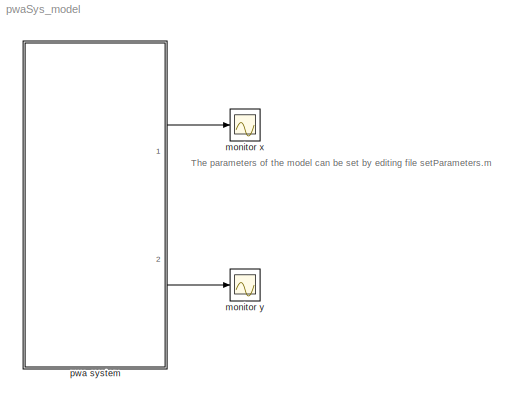
MODEL pwaSys_model
KIND model
CONFIG InitFcn = load simulink.mat\nsetParameters
CONFIG StartFcn = load simulink.mat\nsetParameters\nclear res_X res_U res_Y res_P res_D
CONFIG StopFcn = plotScope
BLOCK [Scope] monitor x
  Ports = [1]
  SID = 16
  ScopeSpecificationString = C++SS(StrPVP('Location','[188, 364, 512, 603]'),StrPVP('Open','off'),MxPVP('AxesTitles',24,'struct(''axes1'',''%<SignalLabel>'')'),MxPVP('ScopeGraphics',28,'struct(''FigureColor'',''[0.5 0.5 0.5]'',''AxesColor'',''[0 0 0]'',''AxesTickColor'',''[1 1 1]'',''LineColors'',''[1 1 0;1 0 1;0 1 1;1 0 0;0 1 0;0 0 1]'',''LineStyles'',''-|-|-|-|-|-'',''LineWidths'',''[0.5 0.5 0.5 0.5 0.5 0.5]'',''MarkerStyle...<+263ch>
BLOCK [Scope] monitor y
  Ports = [1]
  SID = 17
  ScopeSpecificationString = C++SS(StrPVP('Location','[188, 365, 502, 602]'),StrPVP('Open','off'),MxPVP('AxesTitles',24,'struct(''axes1'',''%<SignalLabel>'')'),MxPVP('ScopeGraphics',28,'struct(''FigureColor'',''[0.5 0.5 0.5]'',''AxesColor'',''[0 0 0]'',''AxesTickColor'',''[1 1 1]'',''LineColors'',''[1 1 0;1 0 1;0 1 1;1 0 0;0 1 0;0 0 1]'',''LineStyles'',''-|-|-|-|-|-'',''LineWidths'',''[0.5 0.5 0.5 0.5 0.5 0.5]'',''MarkerStyle...<+263ch>
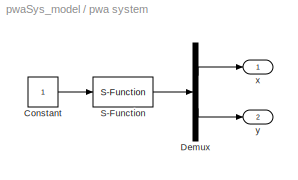
BLOCK [SubSystem] pwa system
  Ports = [0, 2]
  RequestExecContextInheritance = off
  SID = 5
  Variant = off
BLOCK [Constant] pwa system/Constant
  SID = 33
BLOCK [Demux] pwa system/Demux
  DisplayOption = bar
  Outputs = [sim_nx sim_ny]
  Ports = [1, 2]
  SID = 19
BLOCK [S-Function] pwa system/S-Function
  EnableBusSupport = off
  FunctionName = s_pwaSys_c
  Parameters = A,B,C,D,H,K,sim_x0
  Ports = [1, 1]
  SFunctionDeploymentMode = off
  SID = 34
BLOCK [Outport] pwa system/x
  IconDisplay = Port number
  SID = 7
BLOCK [Outport] pwa system/y
  IconDisplay = Port number
  Port = 2
  SID = 10
ANNOTATION (root): \n \n
ANNOTATION (root): \n \n The parameters of the model can be set by editing file setParameters.m \n \n The simulation results are also saved in MATLAB workspace as variables \n res_X, res_Y and automatically plotted
LINE pwa system/Constant:1 -> pwa system/S-Function:1
LINE pwa system/Demux:1 -> pwa system/x:1
LINE pwa system/Demux:2 -> pwa system/y:1
LINE pwa system/S-Function:1 -> pwa system/Demux:1
LINE pwa system:1 -> monitor x:1
LINE pwa system:2 -> monitor y:1
